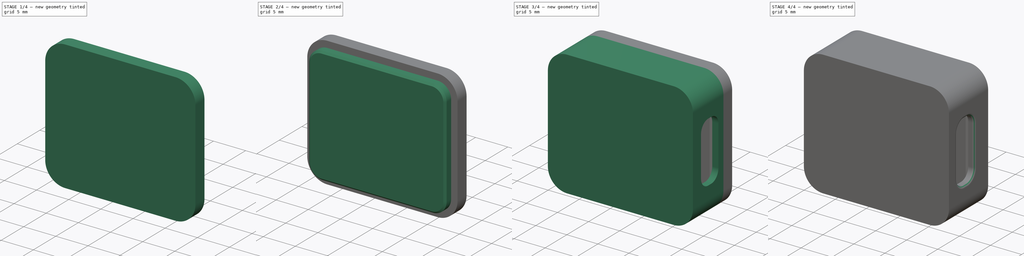
[diagram: build sequence overview — one tinted view per stage of 4, left to right]
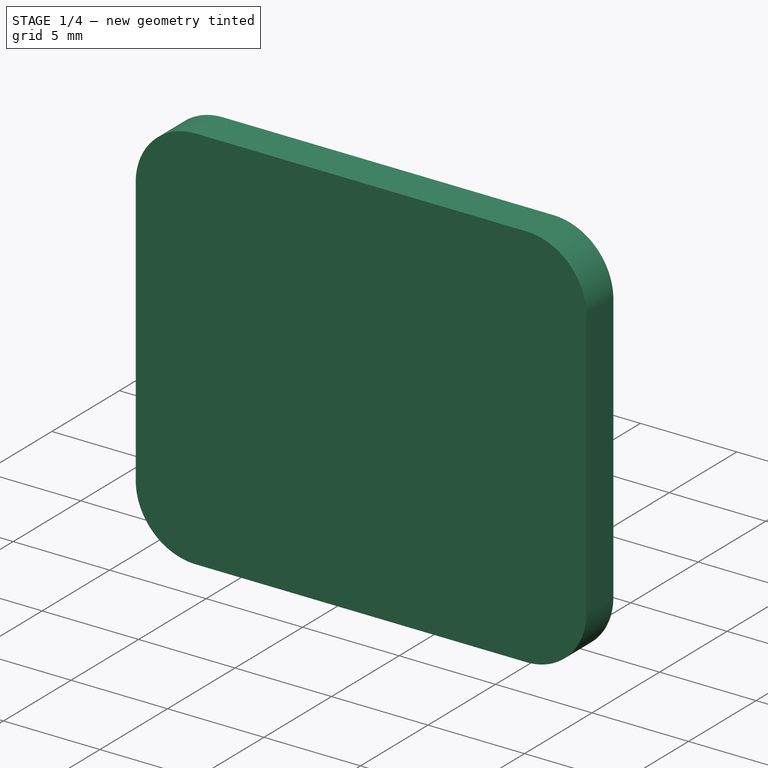
[diagram: stage 1 of 4 — iso view after this stage's code; geometry added in this stage tinted green]
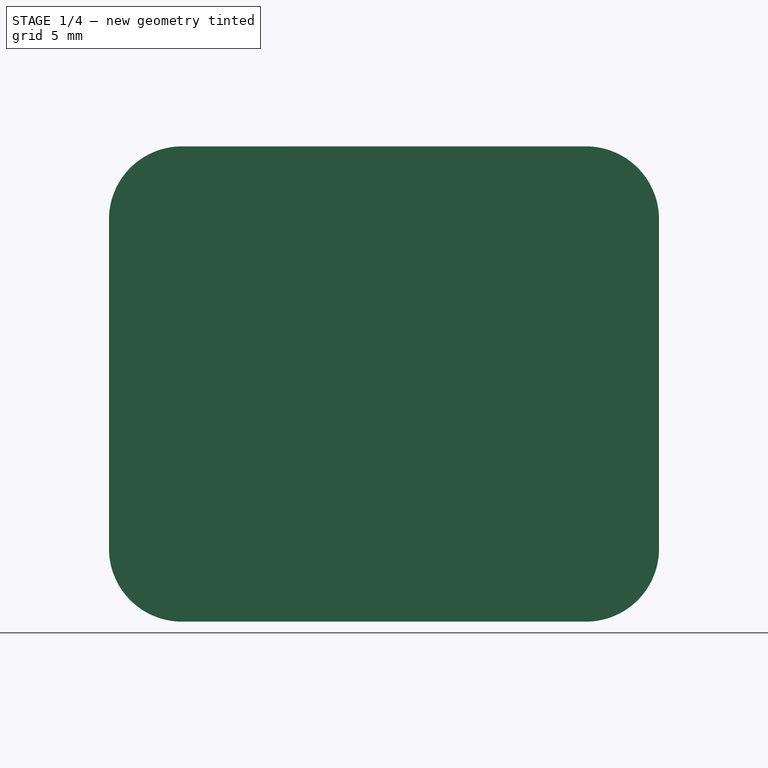
[diagram: stage 1 of 4 — front view after this stage's code; geometry added in this stage tinted green]
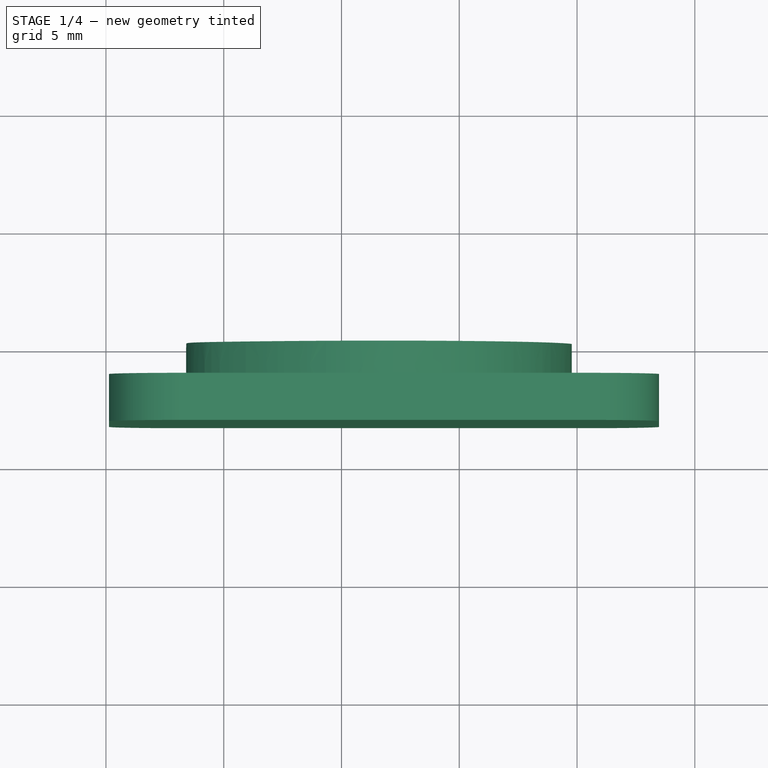
[diagram: stage 1 of 4 — top view after this stage's code; geometry added in this stage tinted green]
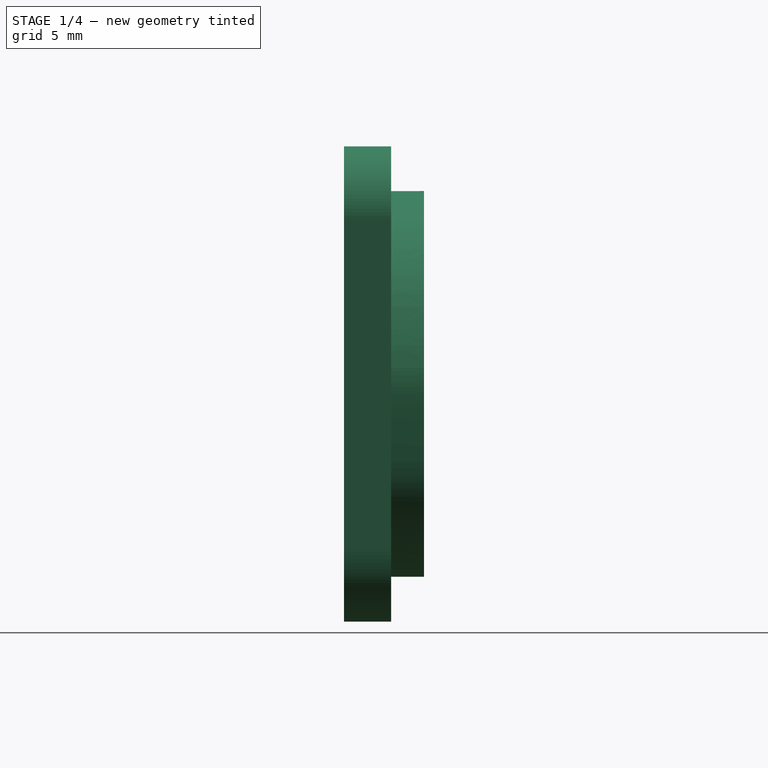
[diagram: stage 1 of 4 — right view after this stage's code; geometry added in this stage tinted green]
FCSTD DOCUMENT  (FreeCAD 1.0R39109 (Git))
Label: housing3
License: All rights reserved
LicenseURL: https://en.wikipedia.org/wiki/All_rights_reserved
objects: Part::Feature×31, Sketcher::SketchObject×5, App::Part×4, PartDesign::Pad×3, PartDesign::Pocket×2, PartDesign::Body×2, Part::FeaturePython×2, PartDesign::SubShapeBinder×1, PartDesign::Thickness×1, PartDesign::ShapeBinder×1, PartDesign::Fillet×1, Part::Part2DObjectPython×1, PartDesign::Chamfer×1, Part::ProjectOnSurface×1, Part::Cut×1
note: 74 computed .brp shape members not serialized (recipe doc carries the construction recipe); baked Part::Feature solids carry a one-line shape summary decoded from their .brp

FEATURE [PartDesign::Body] Body  label="base"
  AllowCompound = false
  Group = -> [Binder,Sketch,Pad,Thickness,Sketch001,Pocket,Fillet,Sketch003,Pocket001]
  Origin = -> Origin004
  Tip = -> Pocket001
FEATURE [Part::Part2DObjectPython] ShapeString  # Draft 2D object (typed FeaturePython)
  Fuse = false
  Justification = 6
  JustificationReference = 0
  KeepLeftMargin = false
  MakeFace = true
  ObliqueAngle = 0
  Placement = pos=(-46.7,-80.51,0) rot=(0,0,1;0rad)
  ScaleToSize = true
  Size = 10
  String = Standard
  Tracking = 0
FEATURE [Part::Feature] Face
  Placement = pos=(93.9985,9.73018,51.8962) rot=(0,-0.707107,-0.707107;3.14159rad)
  shape: bbox 182 x 2e-07 x 181.9 mm, 1 faces, 0 solids (baked)
FEATURE [Part::FeaturePython] Clone001  label="Face002"  # WARN: FeaturePython — macro-defined, semantics opaque (R4)
  AttacherType = Attacher::AttachEngine3D
  Fuse = false
  Placement = pos=(-7.26,27.78,2.84) rot=(-0.57735,0.57735,0.57735;2.0944rad)
  Scale = (0.9,0.9,0.9)
FEATURE [Sketcher::SketchObject] Sketch004
  ArcFitTolerance = 1e-06
  AttachmentSupport = -> [CopyPocket]
  ExternalGeometry = -> [CopyPocket]
  FullyConstrained = true
  MakeInternals = false
  MapMode = 5
  Placement = pos=(0,6.75,-1.5e-15) rot=(0,0.707107,0.707107;3.14159rad)
  sketch-geometry (8):
    g0: LineSegment StartX=-10.3767 StartY=3.9786 StartZ=0 EndX=6.76834 EndY=3.9786 EndZ=0
    g1: LineSegment StartX=9.87334 StartY=0.8736 StartZ=0 EndX=9.87334 EndY=-13.0964 EndZ=0
    g2: LineSegment StartX=6.76834 StartY=-16.2014 StartZ=0 EndX=-10.3767 EndY=-16.2014 EndZ=0
    g3: LineSegment StartX=-13.4817 StartY=-13.0964 StartZ=0 EndX=-13.4817 EndY=0.8736 EndZ=0
    g4: ArcOfCircle CenterX=-10.3766 CenterY=0.873556 CenterZ=0 NormalX=0 NormalY=0 NormalZ=1 AngleXU=0 Radius=3.10504 StartAngle=1.57081 EndAngle=3.14158
    g5: ArcOfCircle CenterX=6.7683 CenterY=0.873556 CenterZ=0 NormalX=0 NormalY=0 NormalZ=1 AngleXU=0 Radius=3.10504 StartAngle=1.42275e-05 EndAngle=1.57078
    g6: ArcOfCircle CenterX=6.7683 CenterY=-13.0964 CenterZ=0 NormalX=0 NormalY=0 NormalZ=1 AngleXU=0 Radius=3.10504 StartAngle=4.7124 EndAngle=6.28317
    g7: ArcOfCircle CenterX=-10.3766 CenterY=-13.0964 CenterZ=0 NormalX=0 NormalY=0 NormalZ=1 AngleXU=0 Radius=3.10504 StartAngle=3.14161 EndAngle=4.71237
  constraints (20):
    c: Coincident(g0,g-3)
    c: Coincident(g0,g-4)
    c: Coincident(g1,g-4)
    c: Coincident(g1,g-5)
    c: Coincident(g2,g-5)
    c: Coincident(g2,g-6)
    c: Coincident(g3,g-6)
    c: Coincident(g3,g-3)
    c: Coincident(g4,g0)
    c: Coincident(g4,g3)
    c: Tangent(g4,g-3)
    c: Coincident(g5,g1)
    c: Coincident(g5,g0)
    c: Tangent(g5,g-4)
    c: Coincident(g6,g2)
    c: Coincident(g6,g1)
    c: Tangent(g6,g-5)
    c: Coincident(g7,g2)
    c: Coincident(g7,g3)
    c: Tangent(g7,g-6)
FEATURE [PartDesign::Pad] Pad001
  Direction = (0,1,-2e-16)
  Length = 2
  Length2 = 10
  Placement = pos=(0,7,-1.6e-15) rot=(0,0,1;0rad)
  Profile = -> Sketch004
  ReferenceAxis = -> Sketch004 [N_Axis]
  Refine = true
  Suppressed = false
  Type = 0
FEATURE [Part::ProjectOnSurface] Projection
  Direction = (0,-1,0)
  Height = 0
  Mode = 0
  Projection = -> [Clone001]
  SupportFace = -> Chamfer [Face27]
FEATURE [Part::FeaturePython] Facebinder  # WARN: FeaturePython — macro-defined, semantics opaque (R4)
  Area = 60.3039
  Extrusion = 2
  Faces = -> [Projection]
  Offset = -0.6
  RemoveSplitter = false
  Sew = false
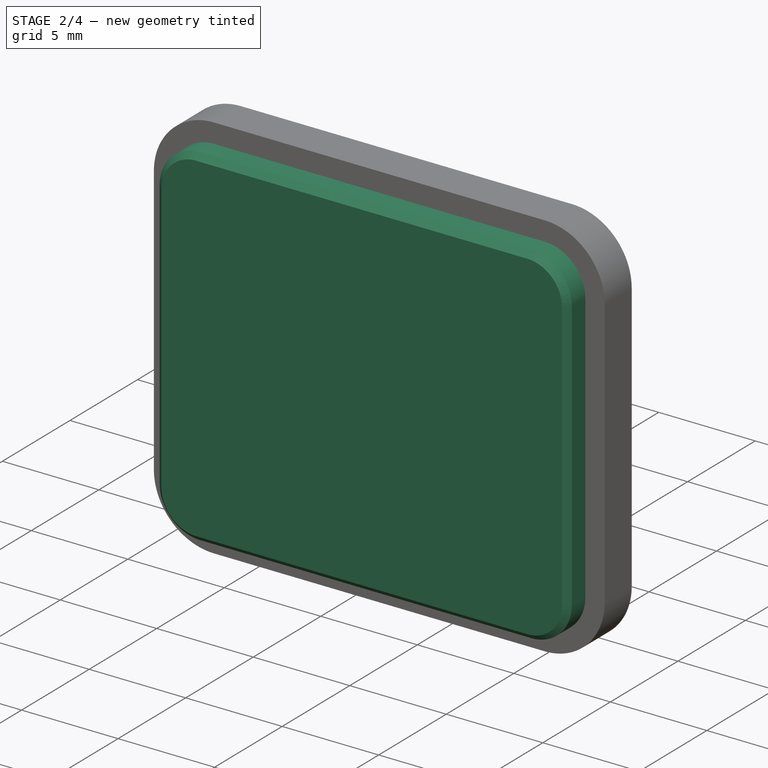
[diagram: stage 2 of 4 — iso view after this stage's code; geometry added in this stage tinted green]
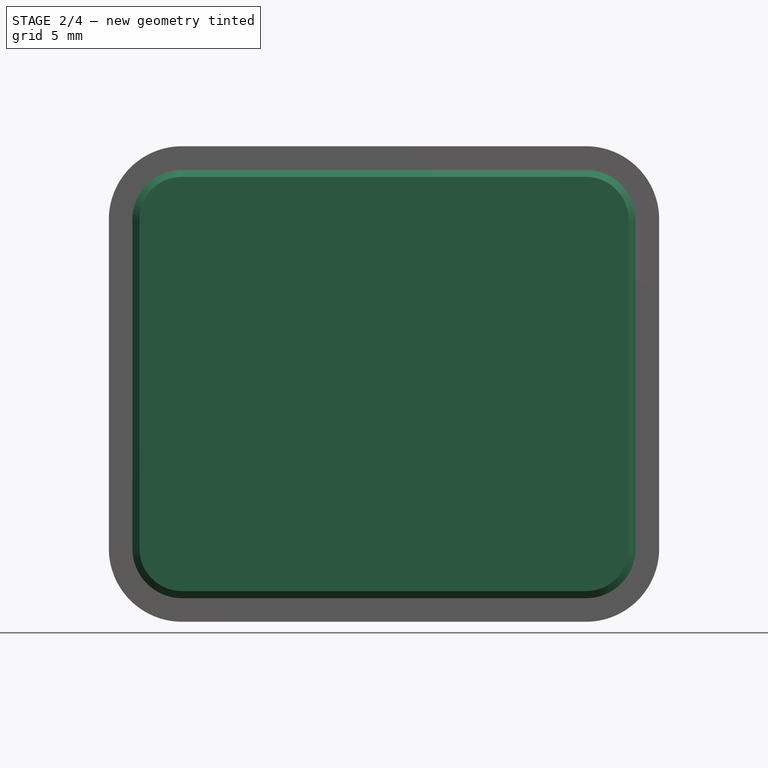
[diagram: stage 2 of 4 — front view after this stage's code; geometry added in this stage tinted green]
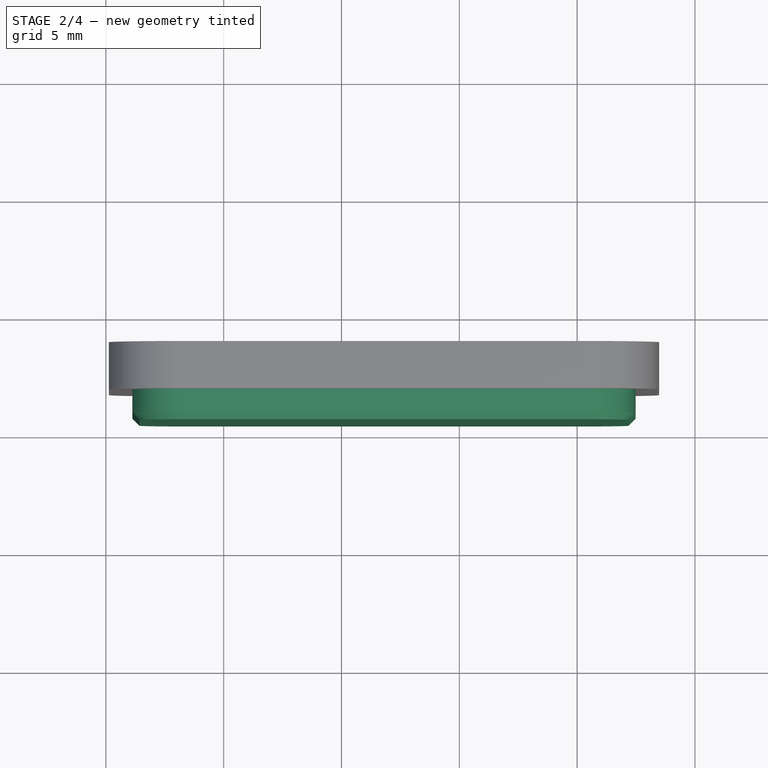
[diagram: stage 2 of 4 — top view after this stage's code; geometry added in this stage tinted green]
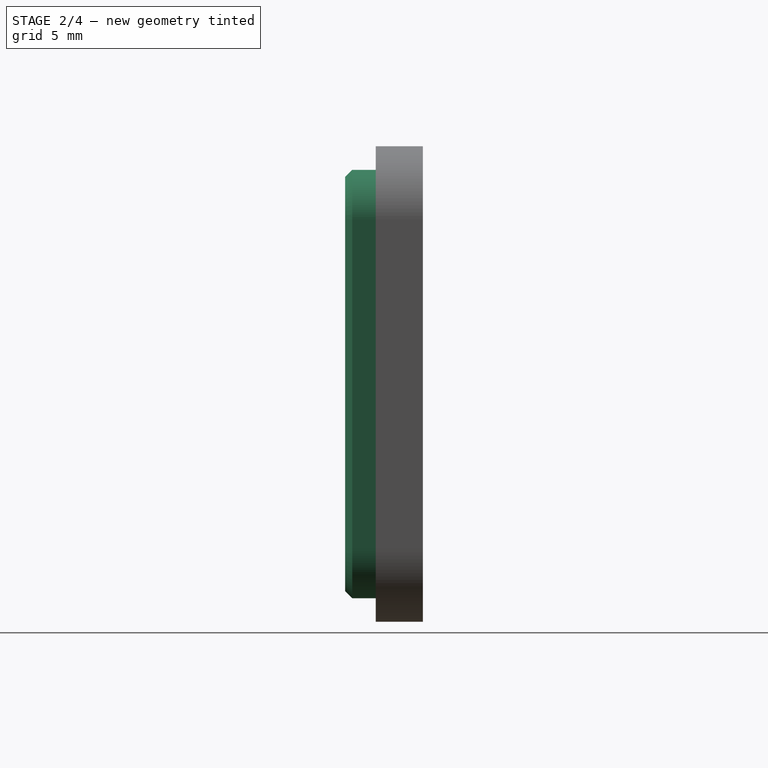
[diagram: stage 2 of 4 — right view after this stage's code; geometry added in this stage tinted green]
FEATURE [Sketcher::SketchObject] Sketch005
  ArcFitTolerance = 1e-06
  AttachmentSupport = -> [Pad001]
  ExternalGeometry = -> [CopyPocket]
  FullyConstrained = true
  MakeInternals = false
  MapMode = 5
  Placement = pos=(0,6.75,-1.6e-15) rot=(1,0,0;1.5708rad)
  sketch-geometry (8):
    g0: LineSegment StartX=-6.76833 StartY=2.9786 StartZ=0 EndX=10.3766 EndY=2.9786 EndZ=0
    g1: LineSegment StartX=12.4817 StartY=0.873586 StartZ=0 EndX=12.4817 EndY=-13.0964 EndZ=0
    g2: LineSegment StartX=10.3766 StartY=-15.2014 StartZ=0 EndX=-6.76833 EndY=-15.2014 EndZ=0
    g3: LineSegment StartX=-8.87334 StartY=-13.0964 StartZ=0 EndX=-8.87334 EndY=0.873586 EndZ=0
    g4: ArcOfCircle CenterX=-6.7683 CenterY=0.873556 CenterZ=0 NormalX=0 NormalY=0 NormalZ=1 AngleXU=0 Radius=2.10504 StartAngle=1.57081 EndAngle=3.14158
    g5: ArcOfCircle CenterX=10.3766 CenterY=0.873556 CenterZ=0 NormalX=0 NormalY=0 NormalZ=1 AngleXU=0 Radius=2.10504 StartAngle=1.40977e-05 EndAngle=1.57078
    g6: ArcOfCircle CenterX=10.3766 CenterY=-13.0964 CenterZ=0 NormalX=0 NormalY=0 NormalZ=1 AngleXU=0 Radius=2.10504 StartAngle=4.7124 EndAngle=6.28317
    g7: ArcOfCircle CenterX=-6.7683 CenterY=-13.0964 CenterZ=0 NormalX=0 NormalY=0 NormalZ=1 AngleXU=0 Radius=2.10504 StartAngle=3.14161 EndAngle=4.71237
  constraints (20):
    c: Coincident(g0,g-3)
    c: Coincident(g0,g-4)
    c: Coincident(g1,g-4)
    c: Coincident(g1,g-5)
    c: Coincident(g2,g-5)
    c: Coincident(g2,g-6)
    c: Coincident(g3,g-6)
    c: Coincident(g3,g-3)
    c: Coincident(g4,g0)
    c: Coincident(g4,g3)
    c: Tangent(g4,g-3)
    c: Coincident(g5,g1)
    c: Coincident(g5,g0)
    c: Tangent(g5,g-4)
    c: Coincident(g6,g2)
    c: Coincident(g6,g1)
    c: Tangent(g6,g-5)
    c: Coincident(g7,g2)
    c: Coincident(g7,g3)
    c: Tangent(g7,g-6)
FEATURE [PartDesign::Pad] Pad002
  BaseFeature = -> Pad001
  Direction = (0,-1,2e-16)
  Length = 1.3
  Length2 = 10
  Placement = pos=(0,7,-1.6e-15) rot=(0,0,1;0rad)
  Profile = -> Sketch005
  ReferenceAxis = -> Sketch005 [N_Axis]
  Refine = true
  Suppressed = false
  Type = 0
FEATURE [PartDesign::Body] Body001  label="lid"
  AllowCompound = false
  Group = -> [CopyPocket,Sketch004,Pad001,Sketch005,Pad002]
  Origin = -> Origin005
  Tip = -> Pad002
FEATURE [PartDesign::Chamfer] Chamfer
  Angle = 45
  Base = -> Pad002 [Edge39]
  BaseFeature = -> Pad002
  ChamferType = 0
  FlipDirection = false
  Placement = pos=(0,7,-1.6e-15) rot=(0,0,1;0rad)
  Refine = true
  Size = 0.3
  Size2 = 1
  SupportTransform = false
  Suppressed = false
  UseAllEdges = false
FEATURE [Part::Cut] Cut
  Base = -> Chamfer
  Refine = true
  Tool = -> Facebinder
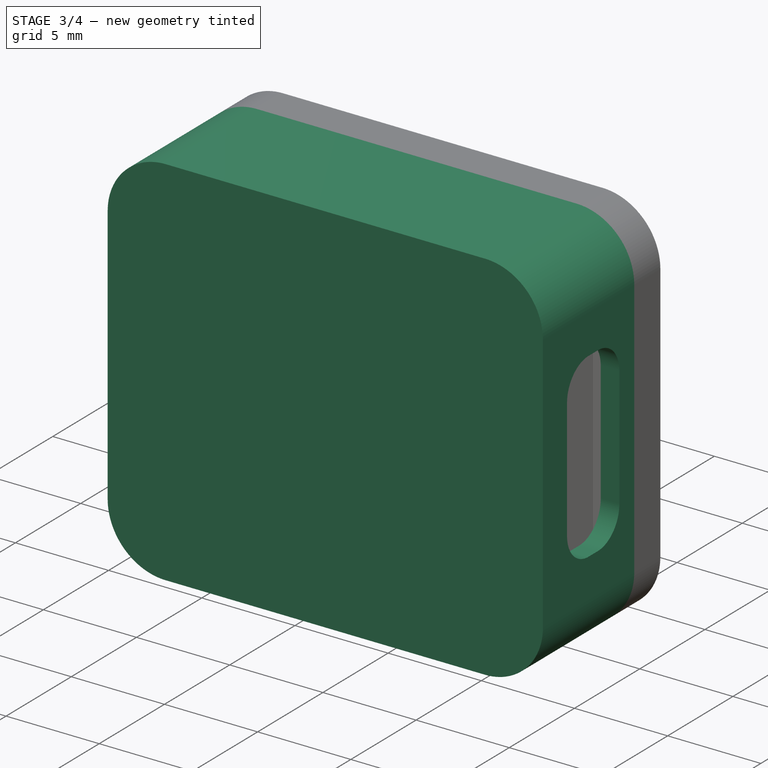
[diagram: stage 3 of 4 — iso view after this stage's code; geometry added in this stage tinted green]
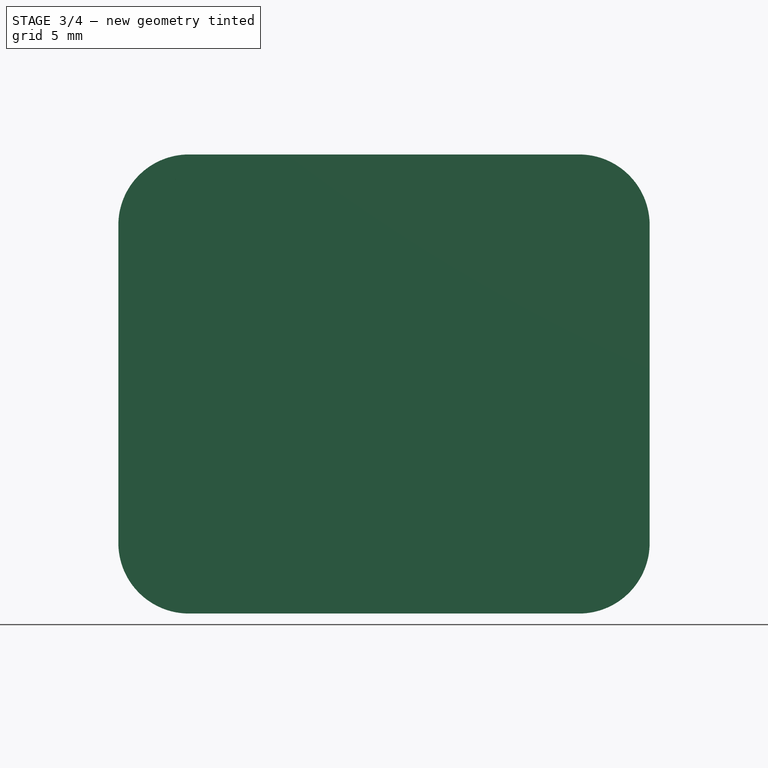
[diagram: stage 3 of 4 — front view after this stage's code; geometry added in this stage tinted green]
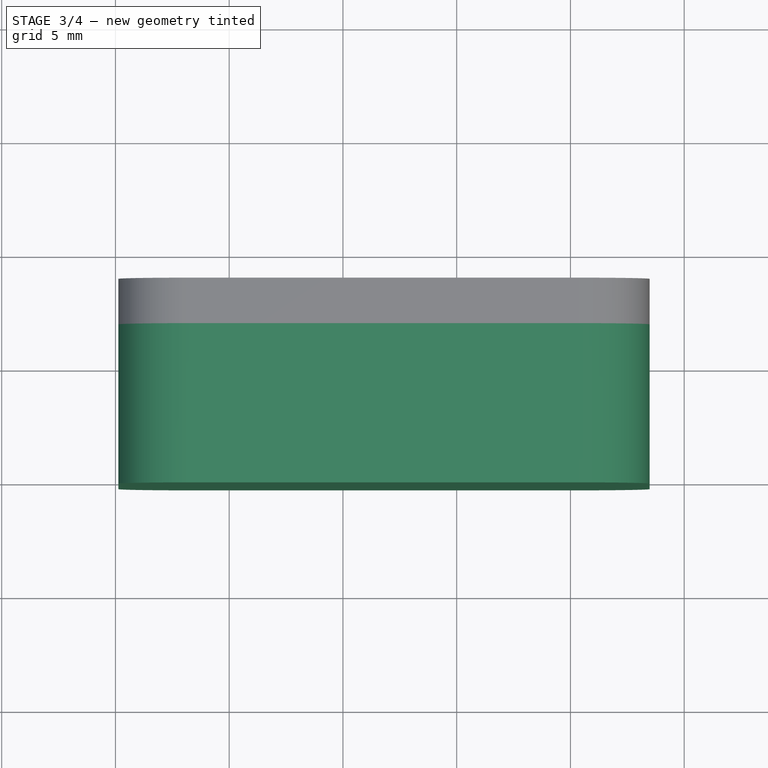
[diagram: stage 3 of 4 — top view after this stage's code; geometry added in this stage tinted green]
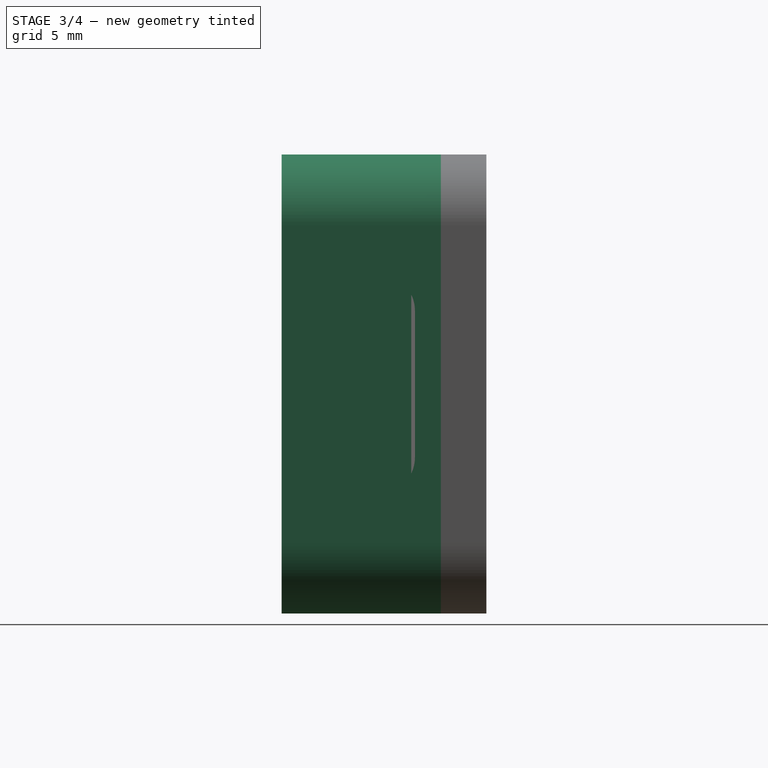
[diagram: stage 3 of 4 — right view after this stage's code; geometry added in this stage tinted green]
FEATURE [Part::Feature] Part__Feature  label="BOSS-EXTRUDE14_8_"
  shape: bbox 0.6 x 1 x 0.3 mm, 6 faces (baked)
FEATURE [Part::Feature] Part__Feature001  label="BOSS-EXTRUDE7_4_"
  shape: bbox 0.3 x 3.784 x 0.75 mm, 6 faces (baked)
FEATURE [Part::Feature] Part__Feature002  label="BOSS-EXTRUDE7_3_"
  shape: bbox 0.3 x 3.784 x 0.75 mm, 6 faces (baked)
FEATURE [Part::Feature] Part__Feature003  label="BOSS-EXTRUDE14_4_"
  shape: bbox 0.3 x 1 x 0.3 mm, 6 faces (baked)
FEATURE [Part::Feature] Part__Feature004  label="BOSS-EXTRUDE14_2_"
  shape: bbox 0.6 x 1 x 0.3 mm, 6 faces (baked)
FEATURE [Part::Feature] Part__Feature005  label="BOSS-EXTRUDE14_11_"
  shape: bbox 0.3 x 1 x 0.3 mm, 6 faces (baked)
FEATURE [Part::Feature] Part__Feature006  label="BOSS-EXTRUDE7_7_"
  shape: bbox 0.3 x 3.784 x 0.75 mm, 6 faces (baked)
FEATURE [Part::Feature] Part__Feature007  label="BOSS-EXTRUDE14_9_"
  shape: bbox 0.3 x 1 x 0.3 mm, 6 faces (baked)
FEATURE [Part::Feature] Part__Feature008  label="BOSS-EXTRUDE14_3_"
  shape: bbox 0.3 x 1 x 0.3 mm, 6 faces (baked)
FEATURE [Part::Feature] Part__Feature009  label="BOSS-EXTRUDE14_7_"
  shape: bbox 0.6 x 1 x 0.3 mm, 6 faces (baked)
FEATURE [Part::Feature] Part__Feature010  label="MIRROR2"
  shape: bbox 6.7 x 4.6 x 0.7 mm, 26 faces (baked)
FEATURE [Part::Feature] Part__Feature011  label="BOSS-EXTRUDE14_5_"
  shape: bbox 0.3 x 1 x 0.3 mm, 6 faces (baked)
FEATURE [Part::Feature] Part__Feature012  label="BOSS-EXTRUDE14_12_"
  shape: bbox 0.3 x 1 x 0.3 mm, 6 faces (baked)
FEATURE [Part::Feature] Part__Feature013  label="BOSS-EXTRUDE7_8_"
  shape: bbox 0.3 x 3.784 x 0.75 mm, 6 faces (baked)
FEATURE [Part::Feature] Part__Feature014  label="BOSS-EXTRUDE7_1_"
  shape: bbox 0.3 x 3.784 x 0.75 mm, 6 faces (baked)
FEATURE [Part::Feature] Part__Feature015  label="BOSS-EXTRUDE14_10_"
  shape: bbox 0.3 x 1 x 0.3 mm, 6 faces (baked)
FEATURE [Part::Feature] Part__Feature016  label="BOSS-EXTRUDE7_9_"
  shape: bbox 0.3 x 3.784 x 0.75 mm, 6 faces (baked)
FEATURE [Part::Feature] Part__Feature017  label="BOSS-EXTRUDE14_6_"
  shape: bbox 0.6 x 1 x 0.3 mm, 6 faces (baked)
FEATURE [Part::Feature] Part__Feature018  label="CHAMFER9"
  shape: bbox 8.94 x 7.3 x 4.2 mm, 103 faces (baked)
FEATURE [Part::Feature] Part__Feature019  label="BOSS-EXTRUDE14_1_"
  shape: bbox 0.3 x 1 x 0.3 mm, 6 faces (baked)
FEATURE [Part::Feature] Part__Feature020  label="BOSS-EXTRUDE7_6_"
  shape: bbox 0.3 x 3.784 x 0.75 mm, 6 faces (baked)
FEATURE [Part::Feature] Part__Feature021  label="BOSS-EXTRUDE7_2_"
  shape: bbox 0.3 x 3.784 x 0.75 mm, 6 faces (baked)
FEATURE [Part::Feature] Part__Feature022  label="CUT-EXTRUDE5"
  shape: bbox 8.867 x 2 x 3.668 mm, 129 faces (baked)
FEATURE [Part::Feature] Part__Feature023  label="BOSS-EXTRUDE7_5_"
  shape: bbox 0.3 x 3.784 x 0.75 mm, 6 faces (baked)
FEATURE [App::Part] USB_TYPE_C_PORT__1_  label="USB TYPE C PORT (1)"
  Group = -> [Part__Feature,Part__Feature001,Part__Feature002,Part__Feature003,Part__Feature004,Part__Feature005,Part__Feature006,Part__Feature007,Part__Feature008,Part__Feature009,Part__Feature010,Part__Feature011,Part__Feature012,Part__Feature013,Part__Feature014,Part__Feature015,Part__Feature016,Part__Feature017,Part__Feature018,Part__Feature019,Part__Feature020,Part__Feature021,Part__Feature022,+1 more]
  Origin = -> Origin
  Placement = pos=(0,0,-1e-16) rot=(0,0,1;0rad)
FEATURE [App::Part] USB_TYPE_C_PORT  label="USB TYPE C PORT"
  Group = -> [USB_TYPE_C_PORT__1_]
  Origin = -> Origin001
  Placement = pos=(6.48966,2.605,-6.1114) rot=(0.57735,0.57735,-0.57735;2.0944rad)
FEATURE [Part::Feature] Part__Feature024  label="U.FL Connector v1"
  Placement = pos=(-7.18732,1,-10.3176) rot=(0,-1,0;1.5708rad)
  shape: bbox 2.6 x 1.3 x 3 mm, 54 faces, 3 solids (baked)
FEATURE [Part::Feature] Part__Feature025  label="Shield"
  shape: bbox 10.6 x 2.7 x 12.6 mm, 38 faces (baked)
FEATURE [Part::Feature] Part__Feature026  label="COMPOUND"
  shape: bbox 20.96 x 1.25 x 17.78 mm, 362 faces, 3 solids (baked)
FEATURE [App::Part] Seeed_Studio_XIAO_ESP32_C6  label="Seeed Studio XIAO-ESP32-C6"
  Group = -> [USB_TYPE_C_PORT,Part__Feature024,Part__Feature025,Part__Feature026]
  Origin = -> Origin002
FEATURE [Part::Feature] Part__Feature027  label="SKTAAAE010 v1"
  Placement = pos=(11.3614,1,0.258127) rot=(0,-1,0;1.5708rad)
  shape: bbox 1.661 x 0.5308 x 3.001 mm, 92 faces (baked)
FEATURE [Part::Feature] Part__Feature028  label="SKTAAAE010 v002"
  Placement = pos=(11.3596,1,-12.4858) rot=(0,1,0;1.5708rad)
  shape: bbox 1.661 x 0.5308 x 3.001 mm, 92 faces (baked)
FEATURE [Part::Feature] Part__Feature029  label="KH5220-A36 (Ceramic Antenna) v2"
  Placement = pos=(-7.53072,1,-2.89559) rot=(0,-1,0;1.5708rad)
  shape: bbox 2 x 0.6 x 5.2 mm, 29 faces, 4 solids (baked)
FEATURE [App::Part] Seeed_Studio_XIAO_ESP32_C6_v7  label="Seeed Studio XIAO ESP32-C6 v7"
  Group = -> [Seeed_Studio_XIAO_ESP32_C6,Part__Feature027,Part__Feature028,Part__Feature029]
  Origin = -> Origin003
  Placement = pos=(0,1,0) rot=(0,0,1;0rad)
FEATURE [PartDesign::SubShapeBinder] Binder
  BindCopyOnChange = 0
  BindMode = 0
  ClaimChildren = false
  Context = -> Body [Binder.]
  Fuse = false
  MakeFace = true
  OffsetFill = false
  OffsetIntersection = false
  OffsetJoinType = 0
  OffsetOpenResult = false
  PartialLoad = false
  Refine = true
  Relative = true
  Support = -> [Seeed_Studio_XIAO_ESP32_C6_v7]
  _Version = 2
FEATURE [Sketcher::SketchObject] Sketch
  ArcFitTolerance = 1e-06
  AttachmentOffset = pos=(0,0,1) rot=(0,0,1;0rad)
  AttachmentSupport = -> [Binder]
  ExternalGeometry = -> [Binder]
  FullyConstrained = false
  MakeInternals = false
  MapMode = 5
  Placement = pos=(0,-0.25,2e-16) rot=(1,0,0;1.5708rad)
  sketch-geometry (25):
    g0: LineSegment [constr] StartX=-6.76834 StartY=2.7786 StartZ=0 EndX=10.3767 EndY=2.7786 EndZ=0
    g1: LineSegment [constr] StartX=-8.67334 StartY=-13.0964 StartZ=0 EndX=-8.67334 EndY=0.8736 EndZ=0
    g2: LineSegment [constr] StartX=-6.76834 StartY=-15.0014 StartZ=0 EndX=10.3767 EndY=-15.0014 EndZ=0
    g3: LineSegment [constr] StartX=12.2817 StartY=0.8736 StartZ=0 EndX=12.2817 EndY=-13.0964 EndZ=0
    g4: ArcOfCircle [constr] CenterX=-6.7683 CenterY=0.873556 CenterZ=0 NormalX=0 NormalY=0 NormalZ=1 AngleXU=0 Radius=1.90504 StartAngle=1.57082 EndAngle=3.14157
    g5: ArcOfCircle [constr] CenterX=-6.95017 CenterY=-13.2782 CenterZ=0 NormalX=0 NormalY=0 NormalZ=1 AngleXU=0 Radius=1.73274 StartAngle=3.03646 EndAngle=4.81752
    g6: ArcOfCircle [constr] CenterX=10.3629 CenterY=-13.0826 CenterZ=0 NormalX=0 NormalY=0 NormalZ=1 AngleXU=0 Radius=1.91885 StartAngle=4.71958 EndAngle=6.27599
    g7: ArcOfCircle [constr] CenterX=10.0619 CenterY=0.558843 CenterZ=0 NormalX=0 NormalY=0 NormalZ=1 AngleXU=0 Radius=2.24196 StartAngle=0.140859 EndAngle=1.42994
    g8: ArcOfCircle CenterX=10.3766 CenterY=0.873556 CenterZ=0 NormalX=0 NormalY=0 NormalZ=1 AngleXU=0 Radius=3.10504 StartAngle=1.42048e-05 EndAngle=1.57078
    g9: LineSegment StartX=-6.76834 StartY=3.9786 StartZ=0 EndX=10.3767 EndY=3.9786 EndZ=0
    g10: ArcOfCircle CenterX=-6.7683 CenterY=0.873556 CenterZ=0 NormalX=0 NormalY=0 NormalZ=1 AngleXU=0 Radius=3.10504 StartAngle=1.57081 EndAngle=3.14158
    g11: LineSegment StartX=-9.87334 StartY=-13.0964 StartZ=0 EndX=-9.87334 EndY=0.8736 EndZ=0
    g12: ArcOfCircle CenterX=-6.7683 CenterY=-13.0964 CenterZ=0 NormalX=0 NormalY=0 NormalZ=1 AngleXU=0 Radius=3.10504 StartAngle=3.14161 EndAngle=4.71237
    g13: LineSegment StartX=-6.76834 StartY=-16.2014 StartZ=0 EndX=10.3767 EndY=-16.2014 EndZ=0
    g14: Circle [constr] CenterX=10.3767 CenterY=-15.0014 CenterZ=0 NormalX=0 NormalY=0 NormalZ=1 AngleXU=0 Radius=3
    g15: ArcOfCircle CenterX=10.3766 CenterY=-13.0964 CenterZ=0 NormalX=0 NormalY=0 NormalZ=1 AngleXU=0 Radius=3.10504 StartAngle=4.7124 EndAngle=6.28317
    g16: LineSegment StartX=13.4817 StartY=0.8736 StartZ=0 EndX=13.4817 EndY=-13.0964 EndZ=0
    g17: LineSegment [constr] StartX=-6.76834 StartY=2.7786 StartZ=0 EndX=-6.76834 EndY=3.9786 EndZ=0
    g18: LineSegment [constr] StartX=-8.67334 StartY=0.8736 StartZ=0 EndX=-9.87334 EndY=0.8736 EndZ=0
    g19: LineSegment [constr] StartX=10.3767 StartY=2.7786 StartZ=0 EndX=10.3767 EndY=3.9786 EndZ=0
    g20: LineSegment [constr] StartX=13.4817 StartY=0.8736 StartZ=0 EndX=12.2817 EndY=0.8736 EndZ=0
    g21: LineSegment [constr] StartX=13.4817 StartY=-13.0964 StartZ=0 EndX=12.2817 EndY=-13.0964 EndZ=0
    g22: LineSegment [constr] StartX=10.3767 StartY=-16.2014 StartZ=0 EndX=10.3767 EndY=-15.0014 EndZ=0
    g23: LineSegment [constr] StartX=-6.76834 StartY=-16.2014 StartZ=0 EndX=-6.76834 EndY=-15.0014 EndZ=0
    g24: LineSegment [constr] StartX=-8.67334 StartY=-13.0964 StartZ=0 EndX=-9.87334 EndY=-13.0964 EndZ=0
  constraints (60):
    c: Coincident(g0,g-3)
    c: Coincident(g0,g-6)
    c: Coincident(g1,g-4)
    c: Coincident(g1,g-3)
    c: Coincident(g2,g-4)
    c: Coincident(g2,g-5)
    c: Coincident(g3,g-6)
    c: Coincident(g3,g-7)
    c: Coincident(g4,g0)
    c: Tangent(g4,g-3) = -1.5708
    c: Coincident(g5,g2)
    c: Coincident(g5,g1)
    c: Coincident(g6,g2)
    c: Coincident(g6,g3)
    c: Coincident(g7,g3)
    c: Coincident(g7,g0)
    c: Coincident(g15,g16)
    c: Coincident(g17,g9)
    c: Vertical(g17)
    c: Coincident(g18,g10)
    c: Horizontal(g18)
    c: Coincident(g19,g8)
    c: Vertical(g19)
    c: Coincident(g20,g8)
    c: Horizontal(g20)
    c: Coincident(g21,g15)
    c: Horizontal(g21)
    c: Coincident(g22,g13)
    c: Coincident(g22,g14)
    c: Vertical(g22)
    c: Coincident(g23,g12)
    c: Vertical(g23)
    c: DistanceY(g22,g22) = 1.2
    c: Equal(g22,g21)
    c: Equal(g21,g20)
    c: Equal(g17,g18)
    c: Equal(g18,g19)
    c: Equal(g19,g23)
    c: Coincident(g24,g11)
    c: Horizontal(g24)
    c: Equal(g24,g23)
    c: Coincident(g14,g2)
    c: Coincident(g13,g12)
    c: Coincident(g11,g10)
    c: Coincident(g10,g9)
    c: Coincident(g9,g8)
    c: Coincident(g8,g16)
    c: Coincident(g15,g13)
    c: Coincident(g12,g11)
    c: Equal(g10,g12)
    c: Equal(g12,g15)
    c: Coincident(g20,g3)
    c: Coincident(g19,g0)
    c: Coincident(g21,g3)
    c: Coincident(g24,g1)
    c: Coincident(g23,g2)
    c: Coincident(g17,g0)
    c: Coincident(g18,g1)
    c: Coincident(g8,g-6)
    c: Equal(g10,g8)
FEATURE [PartDesign::Pad] Pad
  Direction = (0,-1,2e-16)
  Length = 7
  Length2 = 10
  Profile = -> Sketch
  ReferenceAxis = -> Sketch [N_Axis]
  Refine = true
  Reversed = true
  Suppressed = false
  Type = 0
FEATURE [PartDesign::Thickness] Thickness
  Base = -> Pad [Face10]
  BaseFeature = -> Pad
  Intersection = false
  Join = 1
  Mode = 0
  Refine = true
  Reversed = true
  SupportTransform = false
  Suppressed = false
  Value = 1
FEATURE [Sketcher::SketchObject] Sketch001
  ArcFitTolerance = 1e-06
  AttachmentSupport = -> [Thickness]
  ExternalGeometry = -> [Binder]
  FullyConstrained = true
  MakeInternals = false
  MapMode = 5
  Placement = pos=(13.4817,0,1.8e-15) rot=(0.57735,0.57735,0.57735;2.0944rad)
  sketch-geometry (16):
    g0: LineSegment [constr] StartX=3.24999 StartY=-1.6414 StartZ=0 EndX=3.96 EndY=-1.6414 EndZ=0
    g1: LineSegment [constr] StartX=2 StartY=-2.8914 StartZ=0 EndX=2 EndY=-9.3314 EndZ=0
    g2: ArcOfCircle [constr] CenterX=3.25 CenterY=-2.8914 CenterZ=0 NormalX=0 NormalY=0 NormalZ=1 AngleXU=0 Radius=1.25 StartAngle=1.57081 EndAngle=3.14159
    g3: ArcOfCircle [constr] CenterX=3.96 CenterY=-2.8914 CenterZ=0 NormalX=0 NormalY=0 NormalZ=1 AngleXU=0 Radius=1.25 StartAngle=1e-16 EndAngle=1.5708
    g4: ArcOfCircle [constr] CenterX=3.25 CenterY=-9.3314 CenterZ=0 NormalX=0 NormalY=0 NormalZ=1 AngleXU=0 Radius=1.25 StartAngle=3.14159 EndAngle=4.71239
    g5: LineSegment [constr] StartX=5.21 StartY=-2.8914 StartZ=0 EndX=5.21 EndY=-9.3314 EndZ=0
    g6: LineSegment [constr] StartX=3.25 StartY=-10.5814 StartZ=0 EndX=3.96 EndY=-10.5814 EndZ=0
    g7: ArcOfCircle [constr] CenterX=3.96 CenterY=-9.3314 CenterZ=0 NormalX=0 NormalY=0 NormalZ=1 AngleXU=0 Radius=1.25 StartAngle=4.71239 EndAngle=6.28319
    g8: ArcOfCircle CenterX=3.96 CenterY=-9.3314 CenterZ=0 NormalX=0 NormalY=0 NormalZ=1 AngleXU=0 Radius=1.65 StartAngle=4.71239 EndAngle=6.28319
    g9: LineSegment StartX=5.61 StartY=-2.8914 StartZ=0 EndX=5.61 EndY=-9.3314 EndZ=0
    g10: ArcOfCircle CenterX=3.96 CenterY=-2.8914 CenterZ=0 NormalX=0 NormalY=0 NormalZ=1 AngleXU=0 Radius=1.65 StartAngle=0 EndAngle=1.5708
    g11: LineSegment StartX=3.25 StartY=-1.2414 StartZ=0 EndX=3.96 EndY=-1.2414 EndZ=0
    g12: ArcOfCircle CenterX=3.25 CenterY=-2.8914 CenterZ=0 NormalX=0 NormalY=0 NormalZ=1 AngleXU=0 Radius=1.65 StartAngle=1.5708 EndAngle=3.14159
    g13: LineSegment StartX=1.6 StartY=-2.8914 StartZ=0 EndX=1.6 EndY=-9.3314 EndZ=0
    g14: ArcOfCircle CenterX=3.25 CenterY=-9.3314 CenterZ=0 NormalX=0 NormalY=0 NormalZ=1 AngleXU=0 Radius=1.65 StartAngle=3.14159 EndAngle=4.71239
    g15: LineSegment StartX=3.25 StartY=-10.9814 StartZ=0 EndX=3.96 EndY=-10.9814 EndZ=0
  constraints (34):
    c: Tangent(g0,g-4) = 1.5708
    c: Coincident(g2,g0)
    c: Coincident(g2,g1)
    c: Tangent(g2,g-3)
    c: Coincident(g3,g0)
    c: Tangent(g3,g-4) = -1.5708
    c: Coincident(g4,g1)
    c: Coincident(g1,g-3)
    c: Coincident(g5,g3)
    c: Coincident(g6,g4)
    c: Coincident(g6,g-5)
    c: Coincident(g7,g6)
    c: Coincident(g7,g5)
    c: Coincident(g5,g-5)
    c: Coincident(g1,g-6)
    c: Equal(g7,g-5)
    c: Tangent(g4,g-6) = -1.5708
    c: Tangent(g8,g9) = 1.5708
    c: Tangent(g8,g15) = -1.5708
    c: Tangent(g9,g10) = 1.5708
    c: Tangent(g10,g11) = 1.5708
    c: Tangent(g11,g12) = 1.5708
    c: Tangent(g12,g13) = -1.5708
    c: Tangent(g13,g14) = -1.5708
    c: Tangent(g14,g15) = -1.5708
    c: Parallel(g15,g6)
    c: Coincident(g8,g7)
    c: Parallel(g9,g5)
    c: Coincident(g10,g3)
    c: Parallel(g11,g0)
    c: Coincident(g12,g2)
    c: Parallel(g13,g1)
    c: Coincident(g14,g4)
    c: Distance(g14,g4) = 0.4
FEATURE [PartDesign::Pocket] Pocket
  BaseFeature = -> Thickness
  Direction = (-1,0,0)
  Length = 5
  Length2 = 5
  Profile = -> Sketch001
  ReferenceAxis = -> Sketch001 [N_Axis]
  Refine = true
  Suppressed = false
  Type = 0
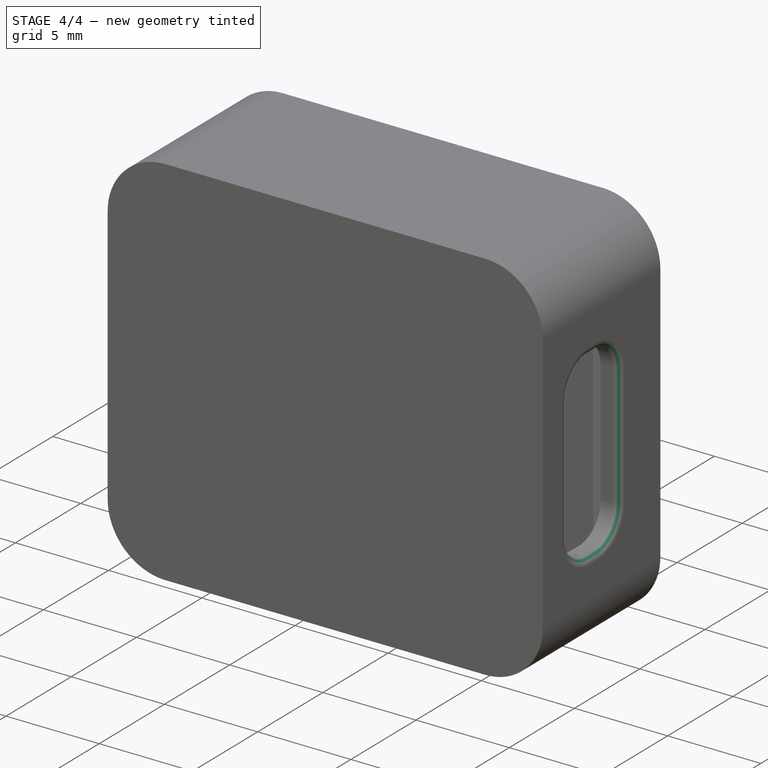
[diagram: stage 4 of 4 — iso view after this stage's code; geometry added in this stage tinted green]
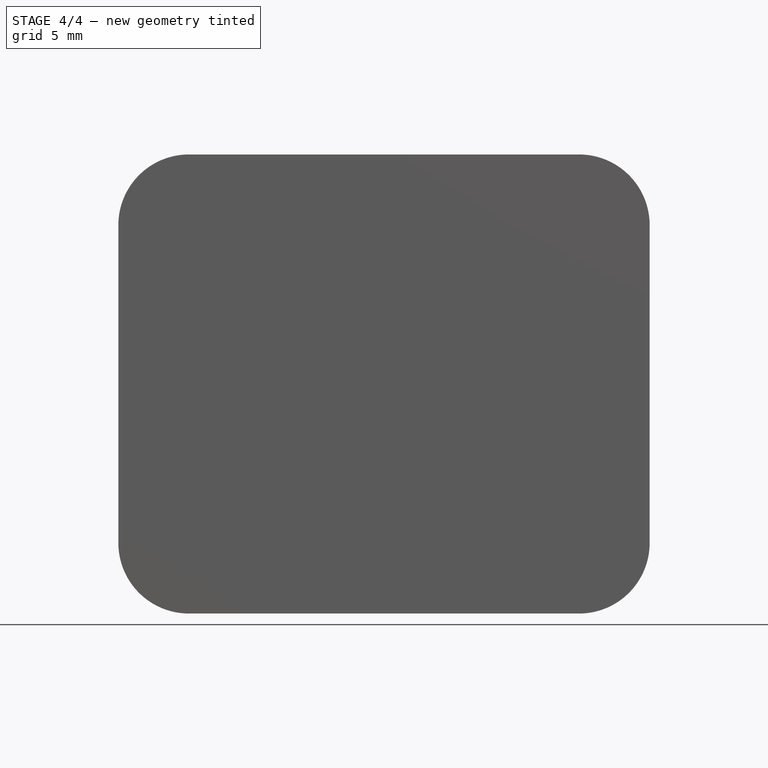
[diagram: stage 4 of 4 — front view after this stage's code; geometry added in this stage tinted green]
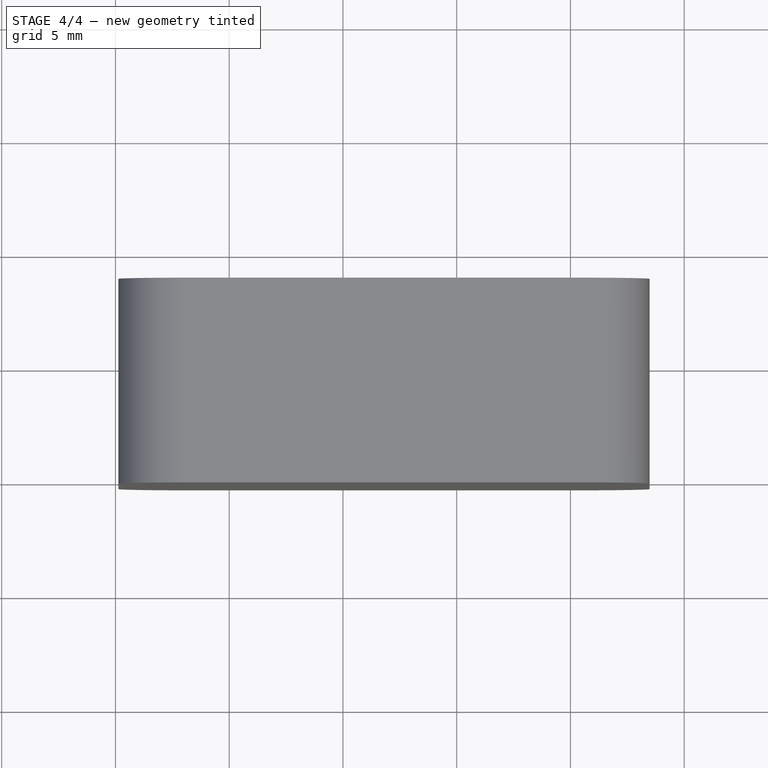
[diagram: stage 4 of 4 — top view after this stage's code; geometry added in this stage tinted green]
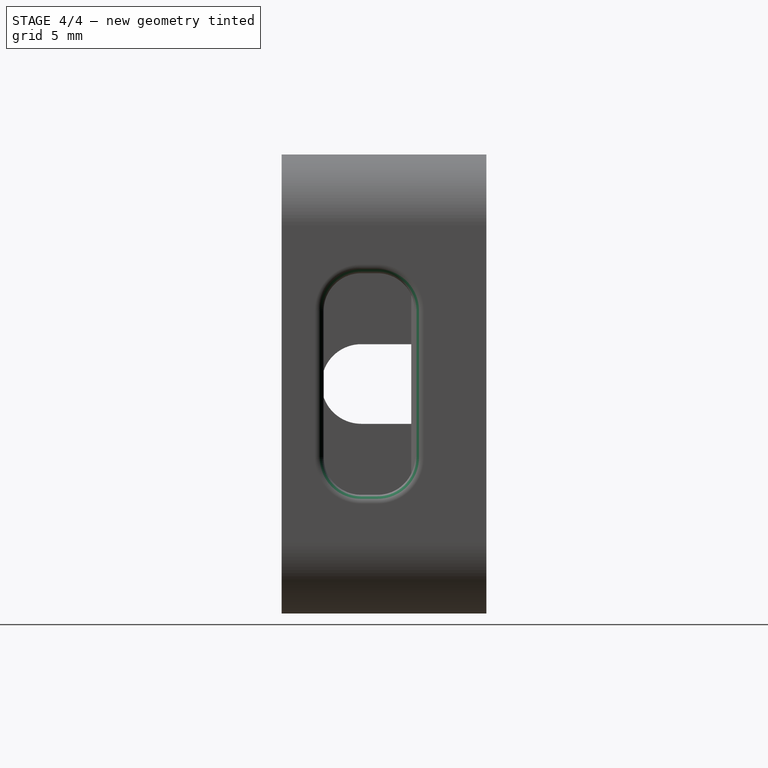
[diagram: stage 4 of 4 — right view after this stage's code; geometry added in this stage tinted green]
FEATURE [PartDesign::ShapeBinder] CopyPocket
  Placement = pos=(0,7,-1.6e-15) rot=(0,0,1;0rad)
  TraceSupport = false
FEATURE [PartDesign::Fillet] Fillet
  Base = -> Pocket [Edge14]
  BaseFeature = -> Pocket
  Radius = 0.4
  Refine = true
  SupportTransform = false
  Suppressed = false
  UseAllEdges = false
FEATURE [Sketcher::SketchObject] Sketch003
  ArcFitTolerance = 1e-06
  AttachmentSupport = -> [Fillet]
  ExternalGeometry = -> [Fillet,Binder]
  FullyConstrained = true
  MakeInternals = false
  MapMode = 5
  Placement = pos=(-9.87334,0,7.5e-15) rot=(0.57735,-0.57735,-0.57735;2.0944rad)
  sketch-geometry (6):
    g0: ArcOfCircle CenterX=-3.25 CenterY=-6.1114 CenterZ=0 NormalX=0 NormalY=0 NormalZ=1 AngleXU=0 Radius=1.75 StartAngle=4.71239 EndAngle=7.85398
    g1: LineSegment [constr] StartX=0.25 StartY=-6.1114 StartZ=0 EndX=-6.75 EndY=-6.1114 EndZ=0
    g2: LineSegment [constr] StartX=-6.75 StartY=0.8736 StartZ=0 EndX=0.25 EndY=-13.0964 EndZ=0
    g3: LineSegment StartX=-3.25 StartY=-4.3614 StartZ=0 EndX=-5.75 EndY=-4.3614 EndZ=0
    g4: LineSegment StartX=-3.25 StartY=-7.8614 StartZ=0 EndX=-5.75 EndY=-7.8614 EndZ=0
    g5: LineSegment StartX=-5.75 StartY=-7.8614 StartZ=0 EndX=-5.75 EndY=-4.3614 EndZ=0
  constraints (16):
    c: Diameter(g0) = 3.5
    c: PointOnObject(g1,g-4)
    c: PointOnObject(g1,g-3)
    c: Horizontal(g1)
    c: Symmetric(g1,g1,g0)
    c: Coincident(g2,g-6)
    c: Coincident(g2,g-7)
    c: PointOnObject(g0,g2)
    c: Horizontal(g3)
    c: Horizontal(g4)
    c: Coincident(g5,g4)
    c: Coincident(g5,g3)
    c: Vertical(g5)
    c: Tangent(g0,g4) = 1.5708
    c: Tangent(g0,g3) = -1.5708
    c: DistanceX(g3,g3) = 2.5
FEATURE [PartDesign::Pocket] Pocket001
  BaseFeature = -> Fillet
  Direction = (1,0,0)
  Length = 5
  Length2 = 5
  Profile = -> Sketch003
  ReferenceAxis = -> Sketch003 [N_Axis]
  Refine = true
  Suppressed = false
  Type = 0
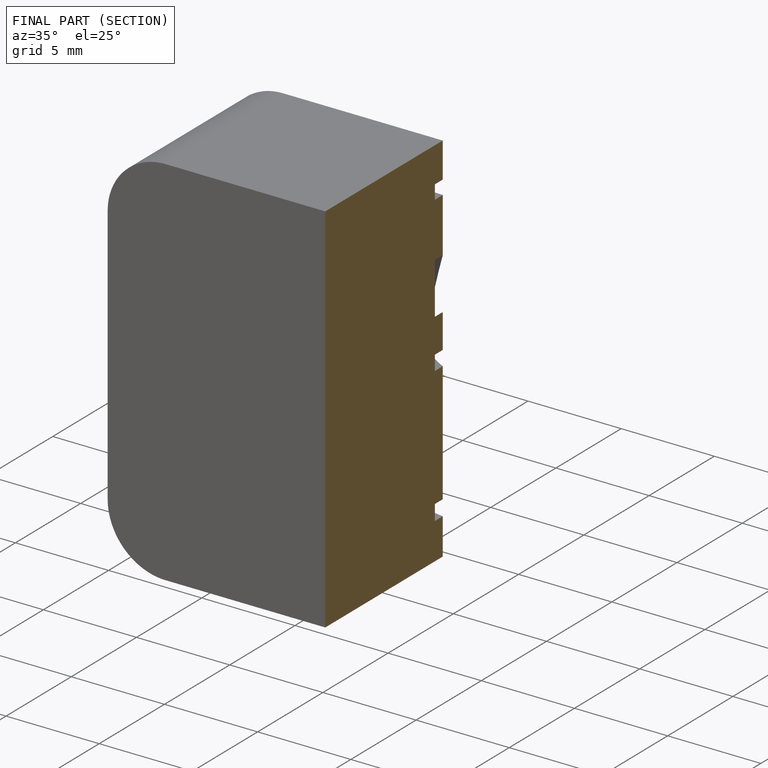
[diagram: finished part — half-section view (interior)]
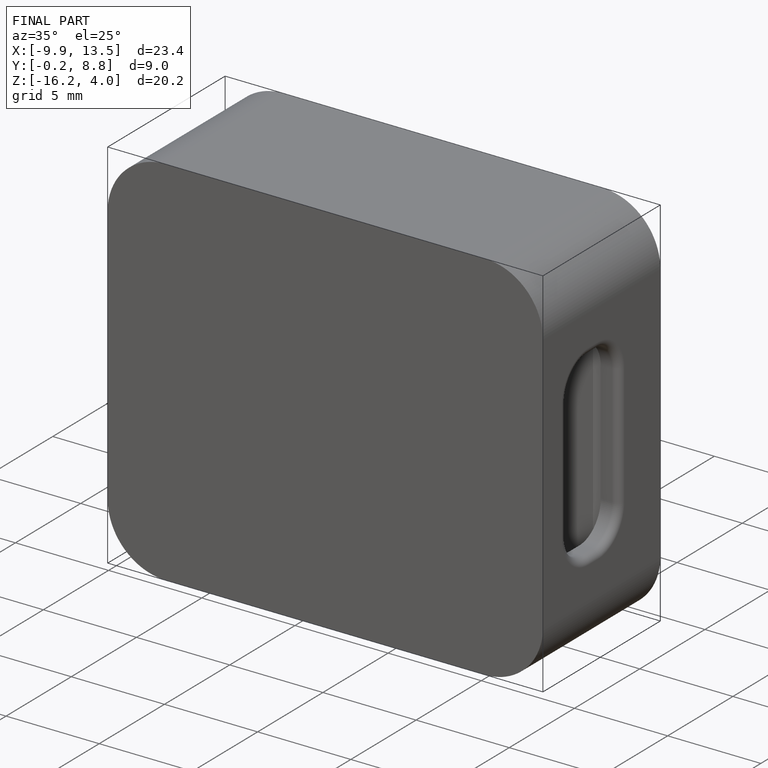
[diagram: finished part — iso view with bounding-box wireframe]
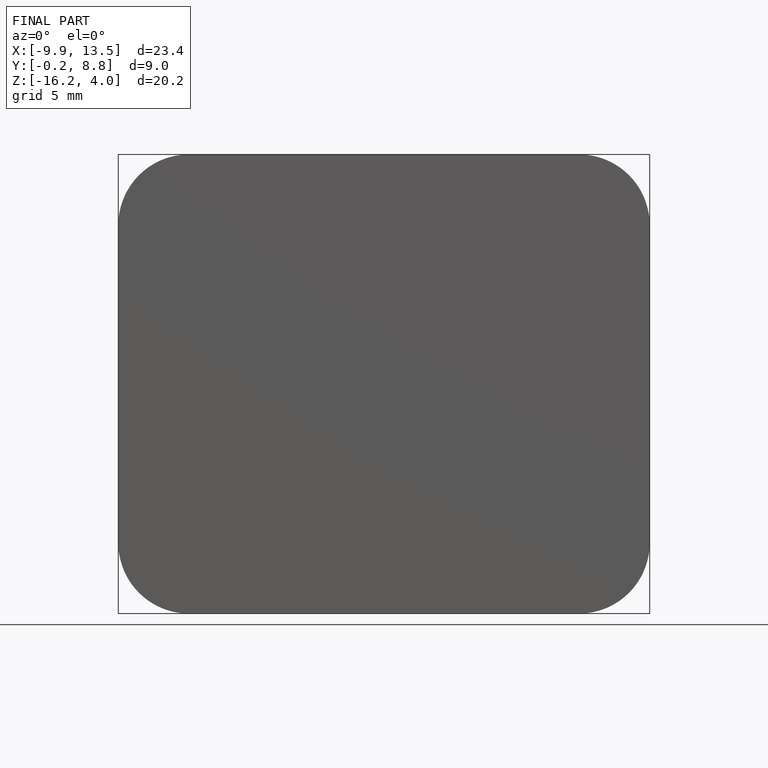
[diagram: finished part — front view with bounding-box wireframe]
